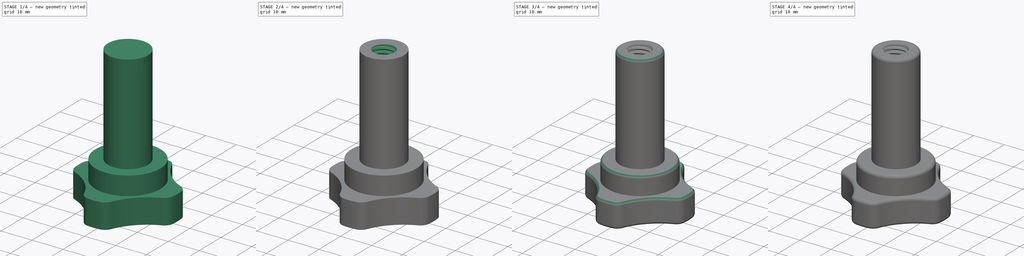
[diagram: build sequence overview — one tinted view per stage of 4, left to right]
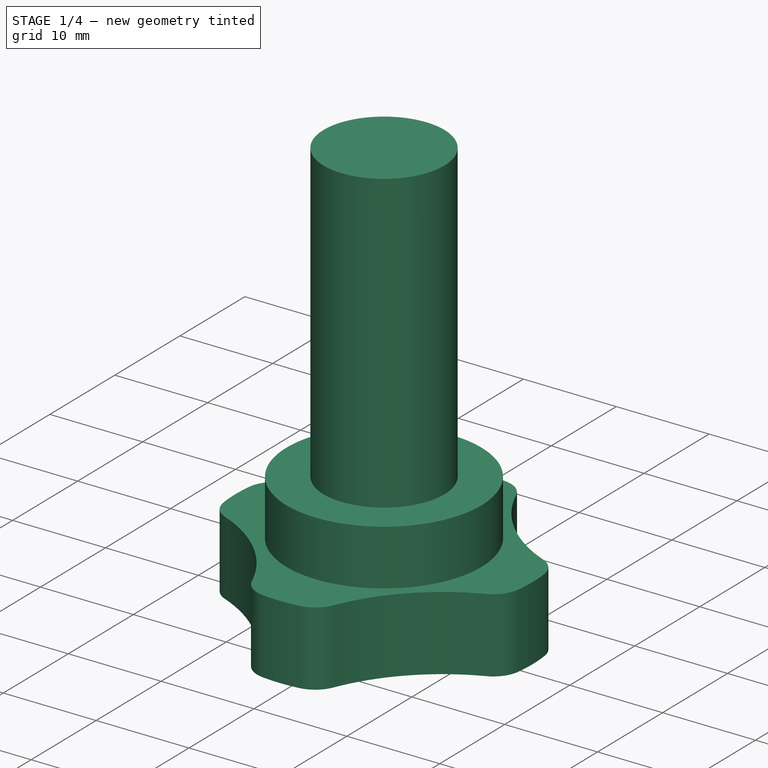
[diagram: stage 1 of 4 — iso view after this stage's code; geometry added in this stage tinted green]
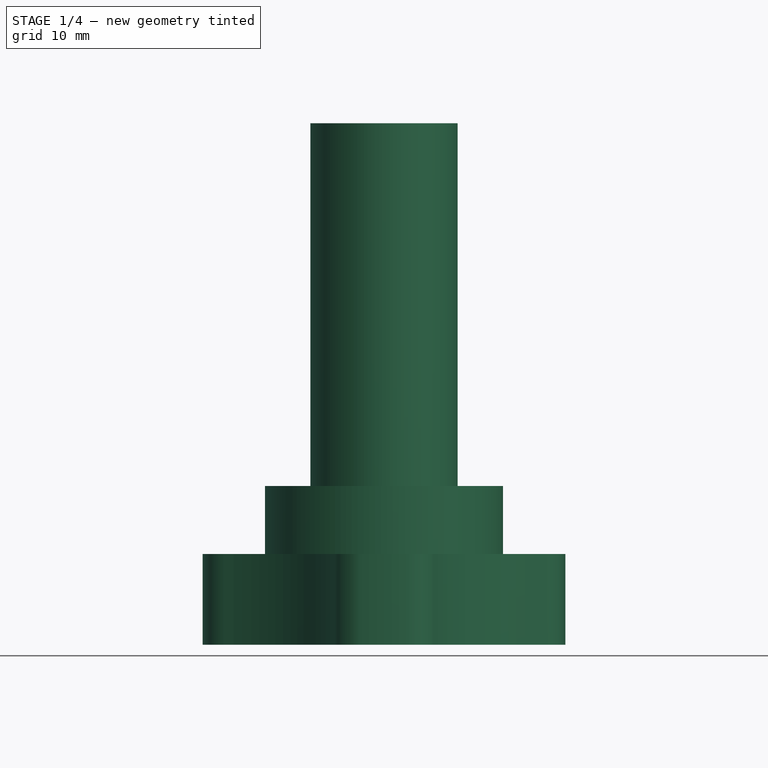
[diagram: stage 1 of 4 — front view after this stage's code; geometry added in this stage tinted green]
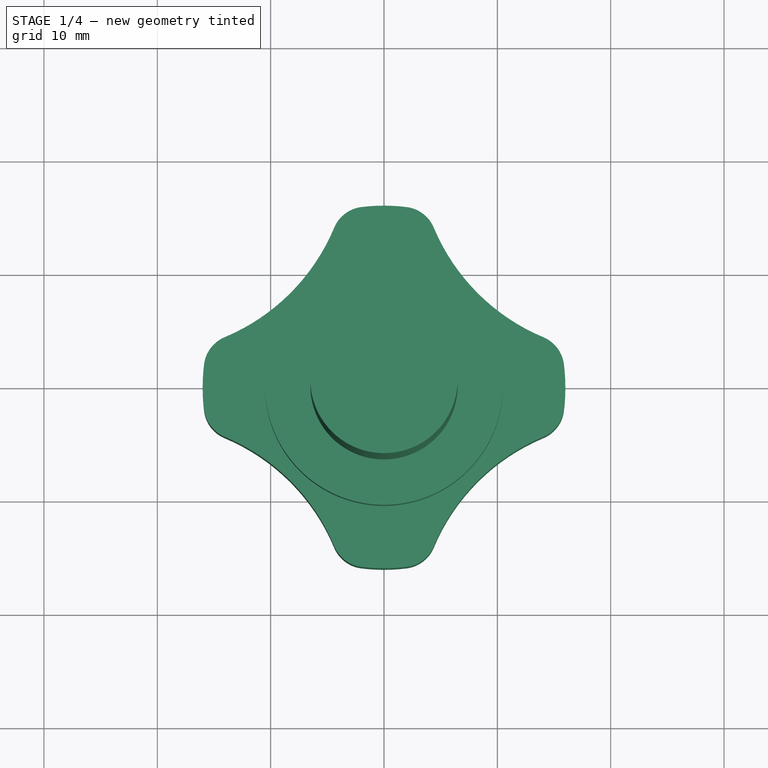
[diagram: stage 1 of 4 — top view after this stage's code; geometry added in this stage tinted green]
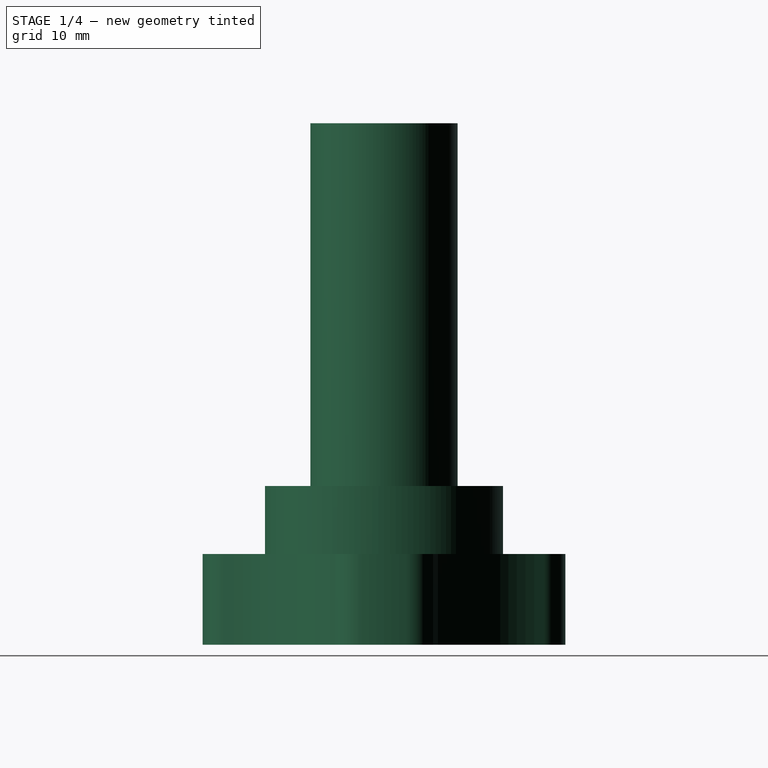
[diagram: stage 1 of 4 — right view after this stage's code; geometry added in this stage tinted green]
FCSTD DOCUMENT  (FreeCAD 0.21R33771 (Git))
Label: ToiletSeatFix
License: All rights reserved
LicenseURL: http://en.wikipedia.org/wiki/All_rights_reserved
objects: Sketcher::SketchObject×13, PartDesign::Pad×4, PartDesign::SubtractiveLoft×2, PartDesign::Fillet×2, PartDesign::SubtractiveHelix×2, PartDesign::Body×2, PartDesign::Chamfer×1
note: 37 computed .brp shape members not serialized (recipe doc carries the construction recipe); baked Part::Feature solids carry a one-line shape summary decoded from their .brp

FEATURE [Sketcher::SketchObject] Sketch004
  FullyConstrained = true
  MapMode = 5
  Placement = pos=(0,0,0) rot=(1,0,0;1.5708rad)
  Support = -> [XZ_Plane]
  expr: Constraints[13] = <<Sketch001>>.Constraints.R
  expr: Constraints[9] = 75
  sketch-geometry (8):
    g0: LineSegment StartX=0.651613 StartY=-0.27 StartZ=0 EndX=2.92 EndY=-0.27 EndZ=0
    g1: LineSegment StartX=2.92 StartY=-0.27 StartZ=0 EndX=3.57161 EndY=-0.77 EndZ=0
    g2: LineSegment StartX=3.57161 StartY=-0.77 StartZ=0 EndX=2.92 EndY=-1.27 EndZ=0
    g3: LineSegment StartX=2.92 StartY=-1.27 StartZ=0 EndX=0.651613 EndY=-1.27 EndZ=0
    g4: LineSegment StartX=0.651613 StartY=-1.27 StartZ=0 EndX=0.651613 EndY=-0.27 EndZ=0
    g5: LineSegment StartX=2.92 StartY=-0.27 StartZ=0 EndX=2.92 EndY=-1.27 EndZ=0
    g6: LineSegment StartX=3.57161 StartY=-0.77 StartZ=0 EndX=2.92 EndY=-0.77 EndZ=0
    g7: LineSegment StartX=0.651613 StartY=-0.27 StartZ=0 EndX=0 EndY=-0.27 EndZ=0
  constraints (24):
    c: Horizontal(g0)
    c: Coincident(g0,g1)
    c: Coincident(g1,g2)
    c: Coincident(g2,g3)
    c: Horizontal(g3)
    c: Coincident(g3,g4)
    c: Vertical(g4)
    c: Coincident(g0,g4)
    c: Equal(g2,g1)
    c: Angle(g1,g2) = 1.309
    c: DistanceY(g4,g4) = 1
    c: DistanceY(g3,g-1) = 1.27  'Pitch'
    c: Equal(g3,g0)
    c: DistanceX(g-1,g0) = 2.92
    c: DistanceX(g-1,g0) = 0.651613  'Radius'
    c: Coincident(g5,g0)
    c: Coincident(g5,g2)
    c: Coincident(g6,g1)
    c: PointOnObject(g6,g5)
    c: Horizontal(g6)
    c: Coincident(g7,g0)
    c: PointOnObject(g7,g-2)
    c: Horizontal(g7)
    c: Equal(g7,g6)
FEATURE [Sketcher::SketchObject] Sketch005  label="Template"
  FullyConstrained = true
  MapMode = 5
  Support = -> [XY_Plane001]
  expr: Constraints[57] = .Constraints.HoleRadius + 0.5 mm
  sketch-geometry (23):
    g0: Circle CenterX=0 CenterY=0 CenterZ=0 NormalX=0 NormalY=0 NormalZ=1 AngleXU=0 Radius=2.9
    g1: Circle CenterX=0 CenterY=0 CenterZ=0 NormalX=0 NormalY=0 NormalZ=1 AngleXU=0 Radius=16
    g2: ArcOfCircle CenterX=-20.9994 CenterY=20.9994 CenterZ=0 NormalX=0 NormalY=0 NormalZ=1 AngleXU=0 Radius=18 StartAngle=5.10844 EndAngle=5.88713
    g3: ArcOfCircle CenterX=20.9994 CenterY=-20.9994 CenterZ=0 NormalX=0 NormalY=0 NormalZ=1 AngleXU=0 Radius=18 StartAngle=1.96685 EndAngle=2.74554
    g4: ArcOfCircle CenterX=20.9994 CenterY=20.9994 CenterZ=0 NormalX=0 NormalY=0 NormalZ=1 AngleXU=0 Radius=18 StartAngle=3.53765 EndAngle=4.31634
    g5: ArcOfCircle CenterX=-20.9994 CenterY=-20.9994 CenterZ=0 NormalX=0 NormalY=0 NormalZ=1 AngleXU=0 Radius=18 StartAngle=0.396053 EndAngle=1.17474
    g6: LineSegment StartX=-20.9994 StartY=-20.9994 StartZ=0 EndX=20.9994 EndY=20.9994 EndZ=0
    g7: LineSegment StartX=-20.9994 StartY=20.9994 StartZ=0 EndX=20.9994 EndY=-20.9994 EndZ=0
    g8: LineSegment StartX=-20.9994 StartY=20.9994 StartZ=0 EndX=20.9994 EndY=20.9994 EndZ=0
    g9: LineSegment StartX=20.9994 StartY=20.9994 StartZ=0 EndX=20.9994 EndY=-20.9994 EndZ=0
    g10: LineSegment StartX=20.9994 StartY=-20.9994 StartZ=0 EndX=-20.9994 EndY=-20.9994 EndZ=0
    g11: LineSegment StartX=-20.9994 StartY=-20.9994 StartZ=0 EndX=-20.9994 EndY=20.9994 EndZ=0
    g12: ArcOfCircle CenterX=-12.898 CenterY=1.625 CenterZ=0 NormalX=0 NormalY=0 NormalZ=1 AngleXU=0 Radius=3 StartAngle=1.96685 EndAngle=3.01626
    g13: ArcOfCircle CenterX=-1.625 CenterY=12.898 CenterZ=0 NormalX=0 NormalY=0 NormalZ=1 AngleXU=0 Radius=3 StartAngle=1.69612 EndAngle=2.74554
    g14: ArcOfCircle CenterX=-12.898 CenterY=-1.625 CenterZ=0 NormalX=0 NormalY=0 NormalZ=1 AngleXU=0 Radius=3 StartAngle=3.26692 EndAngle=4.31634
    g15: ArcOfCircle CenterX=-1.625 CenterY=-12.898 CenterZ=0 NormalX=0 NormalY=0 NormalZ=1 AngleXU=0 Radius=3 StartAngle=3.53765 EndAngle=4.58706
    g16: ArcOfCircle CenterX=1.625 CenterY=-12.898 CenterZ=0 NormalX=0 NormalY=0 NormalZ=1 AngleXU=0 Radius=3 StartAngle=4.83772 EndAngle=5.88713
    g17: ArcOfCircle CenterX=12.898 CenterY=-1.625 CenterZ=0 NormalX=0 NormalY=0 NormalZ=1 AngleXU=0 Radius=3 StartAngle=5.10844 EndAngle=6.15786
    g18: ArcOfCircle CenterX=12.898 CenterY=1.625 CenterZ=0 NormalX=0 NormalY=0 NormalZ=1 AngleXU=0 Radius=3 StartAngle=0.125328 EndAngle=1.17474
    g19: ArcOfCircle CenterX=1.625 CenterY=12.898 CenterZ=0 NormalX=0 NormalY=0 NormalZ=1 AngleXU=0 Radius=3 StartAngle=0.396053 EndAngle=1.44547
    g20: Circle CenterX=0 CenterY=0 CenterZ=0 NormalX=0 NormalY=0 NormalZ=1 AngleXU=0 Radius=6.5
    g21: Circle CenterX=0 CenterY=0 CenterZ=0 NormalX=0 NormalY=0 NormalZ=1 AngleXU=0 Radius=10.5
    g22: Circle CenterX=0 CenterY=0 CenterZ=0 NormalX=0 NormalY=0 NormalZ=1 AngleXU=0 Radius=3.4
  constraints (58):
    c: Coincident(g0,g-1)
    c: Radius(g0) = 2.9  'HoleRadius'
    c: Coincident(g1,g0)
    c: Radius(g1) = 16
    c: Coincident(g6,g5)
    c: Coincident(g6,g4)
    c: Coincident(g7,g2)
    c: Coincident(g7,g3)
    c: Coincident(g8,g2)
    c: Coincident(g8,g4)
    c: Coincident(g9,g4)
    c: Coincident(g9,g3)
    c: Vertical(g9)
    c: Coincident(g10,g3)
    c: Coincident(g10,g5)
    c: Coincident(g11,g5)
    c: Coincident(g11,g2)
    c: Horizontal(g8)
    c: Horizontal(g10)
    c: Vertical(g11)
    c: Equal(g8,g9)
    c: PointOnObject(g0,g7)
    c: PointOnObject(g0,g6)
    c: Equal(g2,g4)
    c: Equal(g4,g3)
    c: Equal(g3,g5)
    c: Equal(g13,g12)
    c: Tangent(g2,g12) = 1.5708
    c: Tangent(g2,g13) = 1.5708
    c: Tangent(g13,g1) = -1.5708
    c: Tangent(g12,g1) = -1.5708
    c: Radius(g2) = 18
    c: Radius(g12) = 3
    c: Equal(g13,g19)
    c: Equal(g19,g18)
    c: Equal(g18,g17)
    c: Equal(g17,g16)
    c: Equal(g16,g15)
    c: Equal(g15,g14)
    c: Tangent(g4,g19) = 1.5708
    c: Tangent(g4,g18) = 1.5708
    c: Tangent(g3,g17) = 1.5708
    c: Tangent(g3,g16) = 1.5708
    c: Tangent(g5,g15) = 1.5708
    c: Tangent(g5,g14) = 1.5708
    c: Tangent(g14,g1) = -1.5708
    c: Tangent(g15,g1) = -1.5708
    c: Tangent(g16,g1) = -1.5708
    c: Tangent(g17,g1) = -1.5708
    c: Tangent(g18,g1) = -1.5708
    c: Tangent(g19,g1) = -1.5708
    c: DistanceY(g14,g12) = 4
    c: Coincident(g20,g0)
    c: Radius(g20) = 6.5
    c: Coincident(g21,g0)
    c: Radius(g21) = 10.5
    c: Coincident(g22,g0)
    c: Radius(g22) = 3.4
FEATURE [Sketcher::SketchObject] Sketch006
  ExternalGeometry = -> [Sketch005]
  FullyConstrained = true
  MapMode = 5
  Support = -> [XY_Plane001]
  sketch-geometry (17):
    g0: ArcOfCircle CenterX=1e-15 CenterY=1.7e-15 CenterZ=0 NormalX=0 NormalY=0 NormalZ=1 AngleXU=0 Radius=16 StartAngle=1.44547 EndAngle=1.69612
    g1: ArcOfCircle CenterX=-5e-16 CenterY=-3.3e-15 CenterZ=0 NormalX=0 NormalY=0 NormalZ=1 AngleXU=0 Radius=16 StartAngle=6.15786 EndAngle=6.40851
    g2: ArcOfCircle CenterX=8.5e-15 CenterY=0 CenterZ=0 NormalX=0 NormalY=0 NormalZ=1 AngleXU=0 Radius=16 StartAngle=4.58706 EndAngle=4.83772
    g3: ArcOfCircle CenterX=-9e-16 CenterY=1.79e-14 CenterZ=0 NormalX=0 NormalY=0 NormalZ=1 AngleXU=0 Radius=16 StartAngle=3.01626 EndAngle=3.26692
    g4: ArcOfCircle CenterX=-1.625 CenterY=12.898 CenterZ=0 NormalX=0 NormalY=0 NormalZ=1 AngleXU=0 Radius=3 StartAngle=1.69612 EndAngle=2.74554
    g5: ArcOfCircle CenterX=1.625 CenterY=12.898 CenterZ=0 NormalX=0 NormalY=0 NormalZ=1 AngleXU=0 Radius=3 StartAngle=0.396053 EndAngle=1.44547
    g6: ArcOfCircle CenterX=12.898 CenterY=1.625 CenterZ=0 NormalX=0 NormalY=0 NormalZ=1 AngleXU=0 Radius=3 StartAngle=0.125328 EndAngle=1.17474
    g7: ArcOfCircle CenterX=12.898 CenterY=-1.625 CenterZ=0 NormalX=0 NormalY=0 NormalZ=1 AngleXU=0 Radius=3 StartAngle=5.10844 EndAngle=6.15786
    g8: ArcOfCircle CenterX=1.625 CenterY=-12.898 CenterZ=0 NormalX=0 NormalY=0 NormalZ=1 AngleXU=0 Radius=3 StartAngle=4.83772 EndAngle=5.88713
    g9: ArcOfCircle CenterX=-1.625 CenterY=-12.898 CenterZ=0 NormalX=0 NormalY=0 NormalZ=1 AngleXU=0 Radius=3 StartAngle=3.53765 EndAngle=4.58706
    g10: ArcOfCircle CenterX=-12.898 CenterY=-1.625 CenterZ=0 NormalX=0 NormalY=0 NormalZ=1 AngleXU=0 Radius=3 StartAngle=3.26692 EndAngle=4.31634
    g11: ArcOfCircle CenterX=-12.898 CenterY=1.625 CenterZ=0 NormalX=0 NormalY=0 NormalZ=1 AngleXU=0 Radius=3 StartAngle=1.96685 EndAngle=3.01626
    g12: ArcOfCircle CenterX=-20.9994 CenterY=20.9994 CenterZ=0 NormalX=0 NormalY=0 NormalZ=1 AngleXU=0 Radius=18 StartAngle=5.10844 EndAngle=5.88713
    g13: ArcOfCircle CenterX=20.9994 CenterY=20.9994 CenterZ=0 NormalX=0 NormalY=0 NormalZ=1 AngleXU=0 Radius=18 StartAngle=3.53765 EndAngle=4.31634
    g14: ArcOfCircle CenterX=20.9994 CenterY=-20.9994 CenterZ=0 NormalX=0 NormalY=0 NormalZ=1 AngleXU=0 Radius=18 StartAngle=1.96685 EndAngle=2.74554
    g15: ArcOfCircle CenterX=-20.9994 CenterY=-20.9994 CenterZ=0 NormalX=0 NormalY=0 NormalZ=1 AngleXU=0 Radius=18 StartAngle=0.396053 EndAngle=1.17474
    g16: Circle CenterX=1e-15 CenterY=1.7e-15 CenterZ=0 NormalX=0 NormalY=0 NormalZ=1 AngleXU=0 Radius=2.9
  constraints (50):
    c: Coincident(g0,g-3)
    c: Coincident(g0,g-14)
    c: Coincident(g1,g-12)
    c: Coincident(g1,g-11)
    c: Coincident(g2,g-9)
    c: Coincident(g2,g-8)
    c: Coincident(g3,g-6)
    c: Coincident(g3,g-5)
    c: Equal(g0,g1)
    c: Equal(g1,g2)
    c: Equal(g2,g3)
    c: Equal(g3,g-16)
    c: Coincident(g4,g-4)
    c: Coincident(g4,g0)
    c: Coincident(g5,g0)
    c: Coincident(g5,g-14)
    c: Coincident(g6,g-13)
    c: Coincident(g6,g1)
    c: Coincident(g7,g1)
    c: Coincident(g7,g-11)
    c: Coincident(g8,g-10)
    c: Coincident(g8,g2)
    c: Coincident(g9,g2)
    c: Coincident(g9,g-8)
    c: Coincident(g10,g-7)
    c: Coincident(g10,g3)
    c: Coincident(g11,g3)
    c: Coincident(g11,g-5)
    c: Equal(g11,g-5)
    c: Equal(g-3,g4)
    c: Equal(g-14,g5)
    c: Equal(g-12,g6)
    c: Equal(g-11,g7)
    c: Equal(g-9,g8)
    c: Equal(g-8,g9)
    c: Equal(g-6,g10)
    c: Coincident(g12,g4)
    c: Coincident(g12,g11)
    c: Coincident(g13,g5)
    c: Coincident(g13,g6)
    c: Coincident(g14,g8)
    c: Coincident(g14,g7)
    c: Coincident(g15,g10)
    c: Coincident(g15,g9)
    c: Equal(g-7,g15)
    c: Equal(g-4,g12)
    c: Equal(g-13,g13)
    c: Equal(g-10,g14)
    c: Coincident(g16,g0)
    c: Equal(g16,g-15)
FEATURE [PartDesign::Pad] Pad001
  Direction = (0,0,1)
  Length = 8
  Length2 = 10
  Profile = -> Sketch006
  ReferenceAxis = -> Sketch006 [N_Axis]
  Type = 0
FEATURE [Sketcher::SketchObject] Sketch007
  AttachmentOffset = pos=(0,0,8) rot=(0,0,1;0rad)
  ExternalGeometry = -> [Sketch005]
  FullyConstrained = true
  MapMode = 5
  Placement = pos=(0,0,8) rot=(0,0,1;0rad)
  Support = -> [XY_Plane001]
  expr: .AttachmentOffset.Base.z = <<Sketch006>>.AttachmentOffset.Base.z + <<Pad001>>.Length
  sketch-geometry (2):
    g0: Circle CenterX=0 CenterY=0 CenterZ=0 NormalX=0 NormalY=0 NormalZ=1 AngleXU=0 Radius=10.5
    g1: Circle CenterX=0 CenterY=0 CenterZ=0 NormalX=0 NormalY=0 NormalZ=1 AngleXU=0 Radius=2.9
  constraints (4):
    c: Coincident(g0,g-4)
    c: Coincident(g1,g0)
    c: Equal(g-4,g0)
    c: Equal(g-3,g1)
FEATURE [PartDesign::Pad] Pad002
  BaseFeature = -> Pad001
  Direction = (0,0,1)
  Length = 6
  Length2 = 10
  Profile = -> Sketch007
  ReferenceAxis = -> Sketch007 [N_Axis]
  Type = 0
FEATURE [PartDesign::Body] Body  label="Test"
  Group = -> [Sketch,Pad,Sketch001,Sketch002,Sketch003,SubtractiveLoft,Fillet,Sketch004,SubtractiveHelix]
  Origin = -> Origin
  Tip = -> SubtractiveHelix
FEATURE [Sketcher::SketchObject] Sketch008
  AttachmentOffset = pos=(0,0,14) rot=(0,0,1;0rad)
  ExternalGeometry = -> [Sketch005]
  FullyConstrained = true
  MapMode = 5
  Placement = pos=(0,0,14) rot=(0,0,1;0rad)
  Support = -> [XY_Plane001]
  expr: .AttachmentOffset.Base.z = <<Sketch007>>.AttachmentOffset.Base.z + <<Pad002>>.Length
  sketch-geometry (1):
    g0: Circle CenterX=0 CenterY=0 CenterZ=0 NormalX=0 NormalY=0 NormalZ=1 AngleXU=0 Radius=6.5
  constraints (2):
    c: Coincident(g0,g-3)
    c: Equal(g0,g-3)
FEATURE [PartDesign::Pad] Pad003
  BaseFeature = -> Pad002
  Direction = (0,0,1)
  Length = 32
  Length2 = 10
  Profile = -> Sketch008
  ReferenceAxis = -> Sketch008 [N_Axis]
  Type = 0
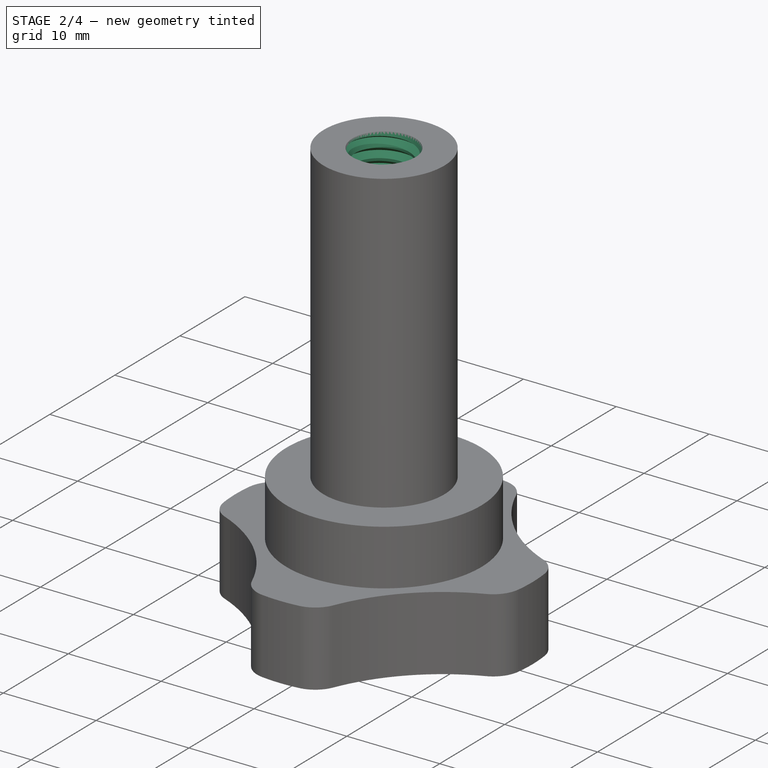
[diagram: stage 2 of 4 — iso view after this stage's code; geometry added in this stage tinted green]
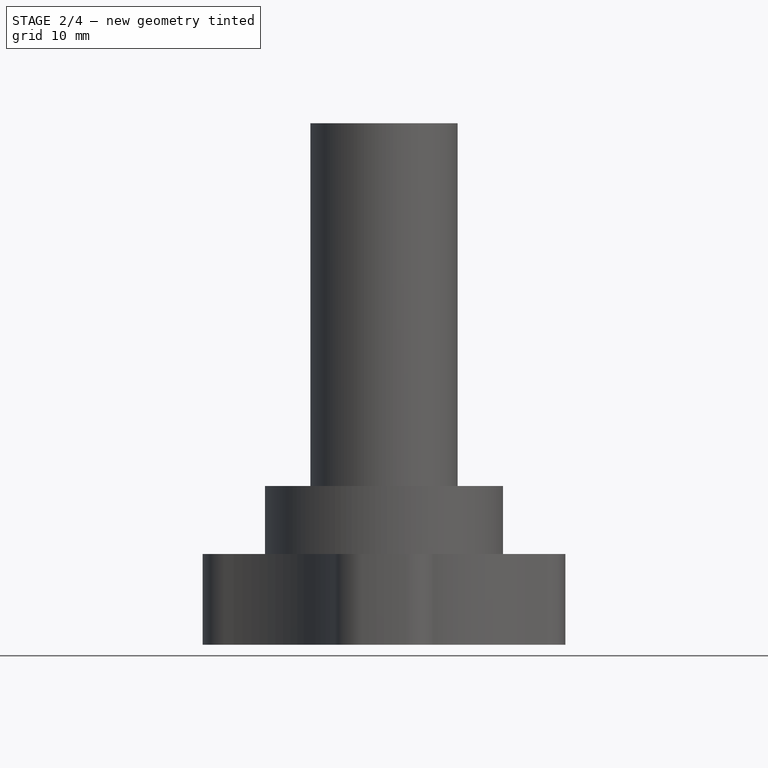
[diagram: stage 2 of 4 — front view after this stage's code; geometry added in this stage tinted green]
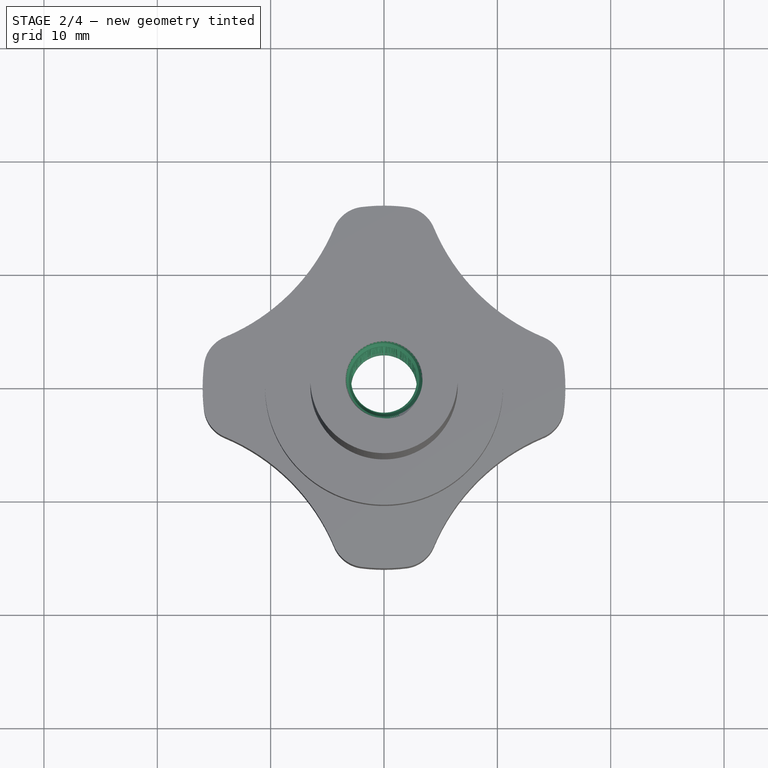
[diagram: stage 2 of 4 — top view after this stage's code; geometry added in this stage tinted green]
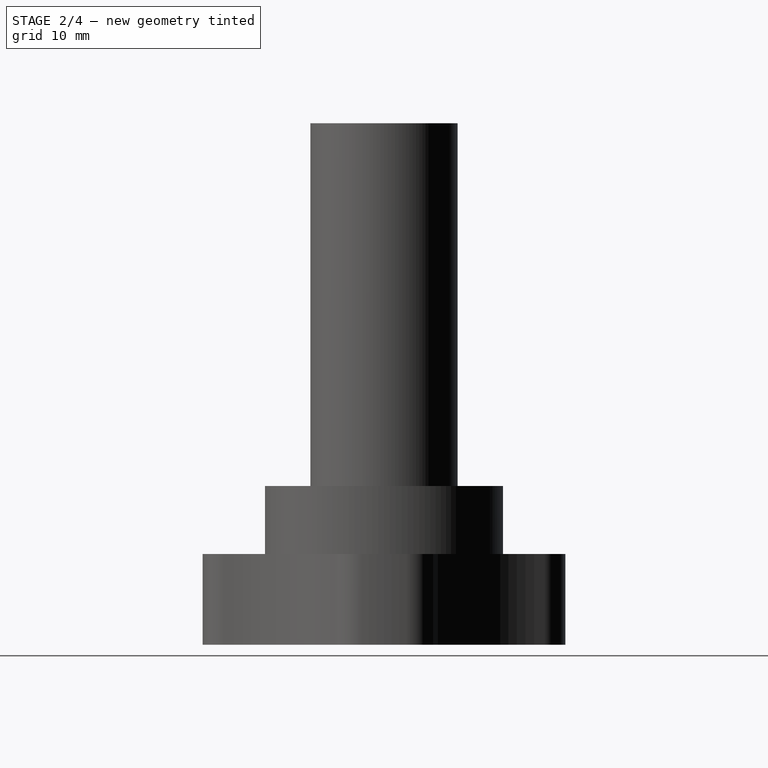
[diagram: stage 2 of 4 — right view after this stage's code; geometry added in this stage tinted green]
FEATURE [Sketcher::SketchObject] Sketch009
  AttachmentOffset = pos=(0,0,14) rot=(0,0,1;0rad)
  ExternalGeometry = -> [Sketch005]
  FullyConstrained = true
  MapMode = 5
  Placement = pos=(0,0,14) rot=(0,0,1;0rad)
  Support = -> [XY_Plane001]
  expr: .AttachmentOffset.Base.z = <<Sketch008>>.AttachmentOffset.Base.z
  sketch-geometry (1):
    g0: Circle CenterX=0 CenterY=0 CenterZ=0 NormalX=0 NormalY=0 NormalZ=1 AngleXU=0 Radius=2.9
  constraints (2):
    c: Coincident(g0,g-3)
    c: Equal(g0,g-3)
FEATURE [Sketcher::SketchObject] Sketch010
  AttachmentOffset = pos=(0,0,44.73) rot=(0,0,1;0rad)
  ExternalGeometry = -> [Sketch005]
  FullyConstrained = true
  MapMode = 5
  Placement = pos=(0,0,44.73) rot=(0,0,1;0rad)
  Support = -> [XY_Plane001]
  expr: .AttachmentOffset.Base.z = <<Sketch008>>.AttachmentOffset.Base.z + <<Pad003>>.Length - 1.27 mm
  sketch-geometry (1):
    g0: Circle CenterX=0 CenterY=0 CenterZ=0 NormalX=0 NormalY=0 NormalZ=1 AngleXU=0 Radius=2.9
  constraints (2):
    c: Coincident(g0,g-3)
    c: Equal(g0,g-3)
FEATURE [Sketcher::SketchObject] Sketch011
  AttachmentOffset = pos=(0,0,46) rot=(0,0,1;0rad)
  ExternalGeometry = -> [Sketch005]
  FullyConstrained = true
  MapMode = 5
  Placement = pos=(0,0,46) rot=(0,0,1;0rad)
  Support = -> [XY_Plane001]
  expr: .AttachmentOffset.Base.z = <<Sketch008>>.AttachmentOffset.Base.z + <<Pad003>>.Length
  sketch-geometry (1):
    g0: Circle CenterX=0 CenterY=0 CenterZ=0 NormalX=0 NormalY=0 NormalZ=1 AngleXU=0 Radius=3.4
  constraints (2):
    c: Equal(g0,g-3)
    c: Coincident(g-3,g0)
FEATURE [PartDesign::SubtractiveLoft] SubtractiveLoft001
  BaseFeature = -> Pad003
  Closed = false
  Profile = -> Sketch009
  Refine = true
  Ruled = true
  Sections = -> [Sketch010,Sketch011]
FEATURE [Sketcher::SketchObject] Sketch012
  ExternalGeometry = -> [Sketch005]
  FullyConstrained = true
  MapMode = 5
  Placement = pos=(0,0,0) rot=(1,0,0;1.5708rad)
  Support = -> [XZ_Plane001]
  sketch-geometry (9):
    g0: LineSegment StartX=0.651613 StartY=-0.27 StartZ=0 EndX=2.9 EndY=-0.27 EndZ=0
    g1: LineSegment StartX=2.9 StartY=-0.27 StartZ=0 EndX=3.55161 EndY=-0.77 EndZ=0
    g2: LineSegment StartX=3.55161 StartY=-0.77 StartZ=0 EndX=2.9 EndY=-1.27 EndZ=0
    g3: LineSegment StartX=2.9 StartY=-1.27 StartZ=0 EndX=0.651613 EndY=-1.27 EndZ=0
    g4: LineSegment StartX=0.651613 StartY=-1.27 StartZ=0 EndX=0.651613 EndY=-0.27 EndZ=0
    g5: LineSegment StartX=2.9 StartY=0 StartZ=0 EndX=2.9 EndY=-0.27 EndZ=0
    g6: LineSegment StartX=2.9 StartY=-0.27 StartZ=0 EndX=2.9 EndY=-1.27 EndZ=0
    g7: LineSegment StartX=0.651613 StartY=-0.27 StartZ=0 EndX=0 EndY=-0.27 EndZ=0
    g8: LineSegment StartX=3.55161 StartY=-0.77 StartZ=0 EndX=2.9 EndY=-0.77 EndZ=0
  constraints (26):
    c: Horizontal(g0)
    c: Coincident(g0,g1)
    c: Coincident(g1,g2)
    c: Coincident(g2,g3)
    c: Horizontal(g3)
    c: Coincident(g3,g4)
    c: Coincident(g4,g0)
    c: Vertical(g4)
    c: Coincident(g5,g-3)
    c: Coincident(g5,g0)
    c: Vertical(g5)
    c: Equal(g1,g2)
    c: Angle(g1,g2) = 1.309
    c: DistanceY(g3,g-1) = 1.27  'Pitch'
    c: DistanceY(g4,g4) = 1
    c: Coincident(g6,g0)
    c: Coincident(g6,g2)
    c: Vertical(g6)
    c: Coincident(g7,g0)
    c: Horizontal(g7)
    c: PointOnObject(g7,g-2)
    c: Coincident(g8,g1)
    c: PointOnObject(g8,g6)
    c: Horizontal(g8)
    c: Equal(g8,g7)
    c: DistanceX(g7,g7) = 0.651613  'Radius'
FEATURE [PartDesign::Chamfer] Chamfer
  Angle = 66
  Base = -> SubtractiveLoft001 [Edge24]
  BaseFeature = -> SubtractiveLoft001
  ChamferType = 2
  FlipDirection = false
  Size = 0.5
  Size2 = 1
  SupportTransform = false
  UseAllEdges = false
FEATURE [PartDesign::SubtractiveHelix] SubtractiveHelix001
  Angle = 0
  Axis = (0,-2e-16,1)
  Base = (0,0,0)
  BaseFeature = -> Chamfer
  Growth = 0
  HasBeenEdited = true
  Height = 48
  LeftHanded = false
  Mode = 0
  Outside = false
  Pitch = 1.27
  Profile = -> Sketch012
  ReferenceAxis = -> Sketch012 [V_Axis]
  Turns = 37.7953
  expr: Height = <<Pad001>>.Length + <<Pad002>>.Length + <<Pad003>>.Length + 2 mm
  expr: Pitch = <<Sketch012>>.Constraints.Pitch
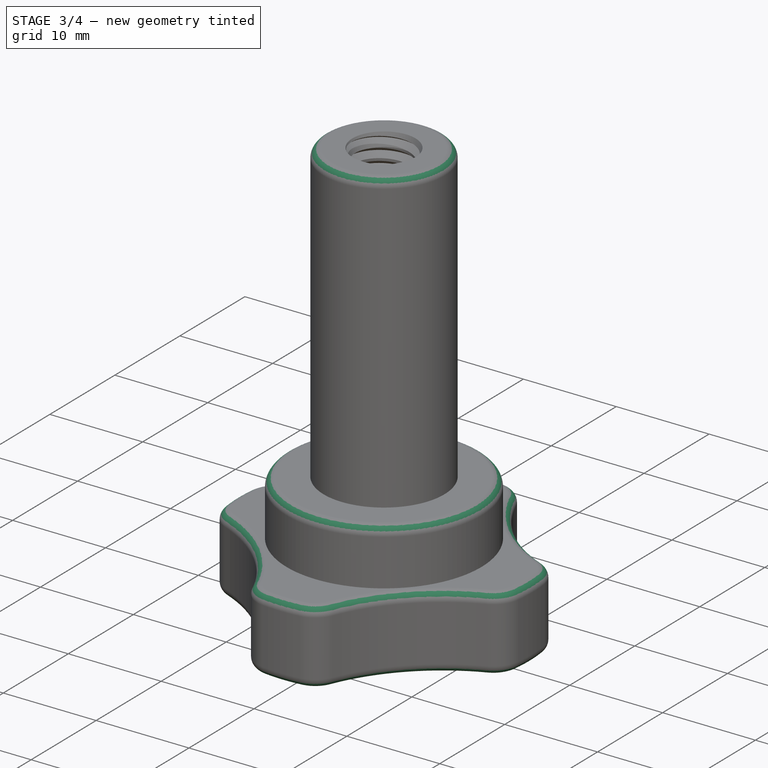
[diagram: stage 3 of 4 — iso view after this stage's code; geometry added in this stage tinted green]
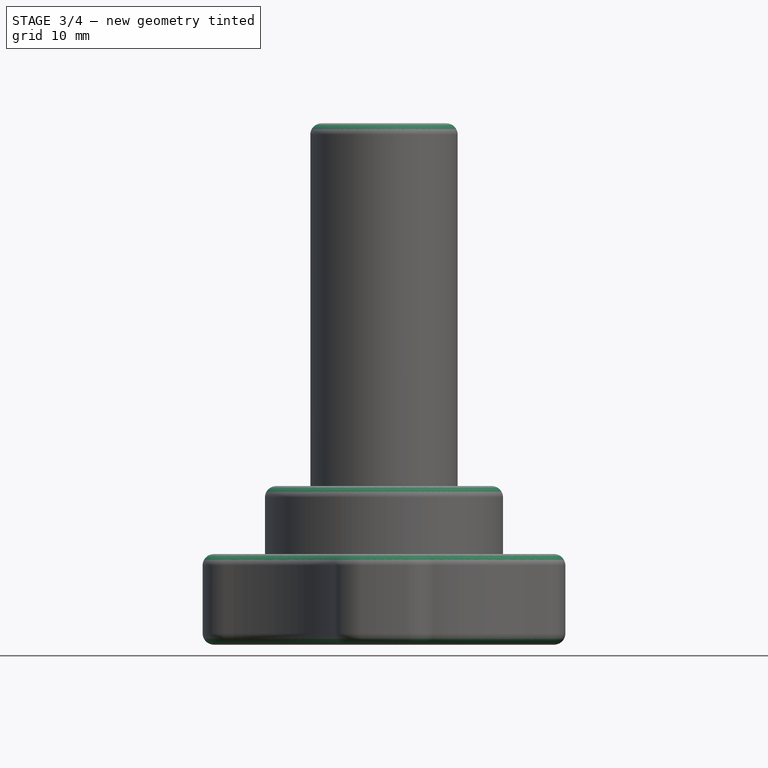
[diagram: stage 3 of 4 — front view after this stage's code; geometry added in this stage tinted green]
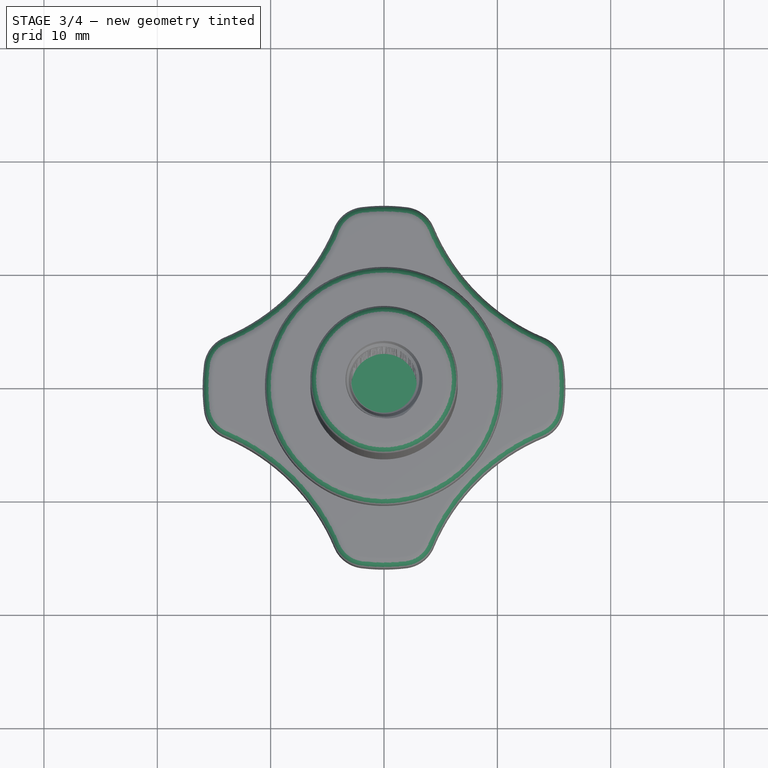
[diagram: stage 3 of 4 — top view after this stage's code; geometry added in this stage tinted green]
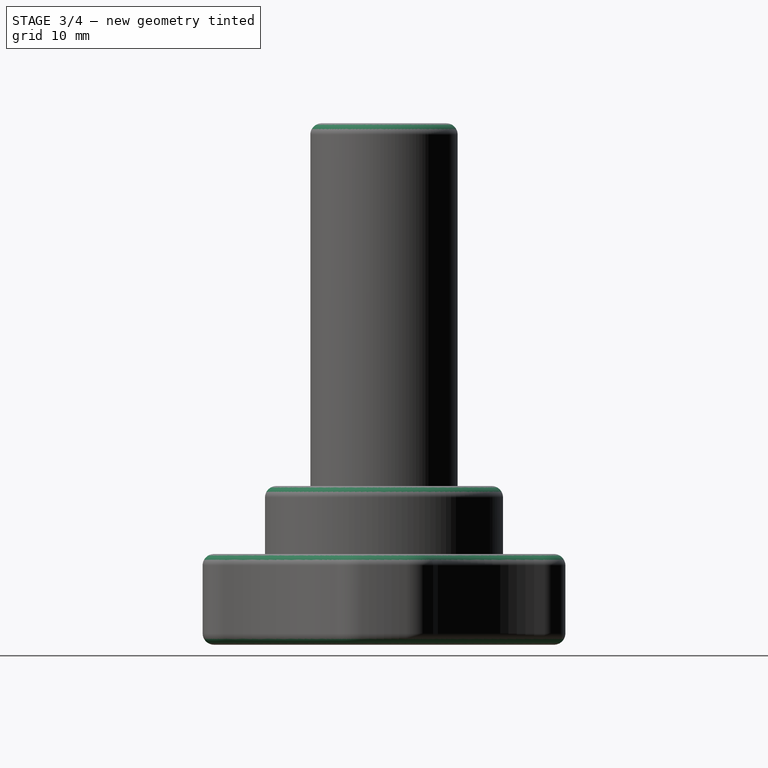
[diagram: stage 3 of 4 — right view after this stage's code; geometry added in this stage tinted green]
FEATURE [Sketcher::SketchObject] Sketch
  FullyConstrained = true
  MapMode = 5
  Support = -> [XY_Plane]
  sketch-geometry (7):
    g0: LineSegment StartX=3.75 StartY=6.49519 StartZ=0 EndX=-3.75 EndY=6.49519 EndZ=0
    g1: LineSegment StartX=-3.75 StartY=6.49519 StartZ=0 EndX=-7.5 EndY=6.84e-14 EndZ=0
    g2: LineSegment StartX=-7.5 StartY=6.84e-14 StartZ=0 EndX=-3.75 EndY=-6.49519 EndZ=0
    g3: LineSegment StartX=-3.75 StartY=-6.49519 StartZ=0 EndX=3.75 EndY=-6.49519 EndZ=0
    g4: LineSegment StartX=3.75 StartY=-6.49519 StartZ=0 EndX=7.5 EndY=-1.33e-14 EndZ=0
    g5: LineSegment StartX=7.5 StartY=-1.33e-14 StartZ=0 EndX=3.75 EndY=6.49519 EndZ=0
    g6: Circle CenterX=0 CenterY=0 CenterZ=0 NormalX=0 NormalY=0 NormalZ=1 AngleXU=0 Radius=7.5
  constraints (16):
    c: Coincident(g0,g1)
    c: Coincident(g1,g2)
    c: Coincident(g2,g3)
    c: Coincident(g3,g4)
    c: Coincident(g4,g5)
    c: Coincident(g5,g0)
    c: Equal(g0, g1-g5) x5
    c: PointOnObject(g0,g6)
    c: PointOnObject(g1,g6)
    c: PointOnObject(g2,g6)
    c: PointOnObject(g3,g6)
    c: PointOnObject(g4,g6)
    c: PointOnObject(g5,g6)
    c: Coincident(g6,g-1)
    c: DistanceX(g1,g4) = 15
    c: Horizontal(g0)
FEATURE [PartDesign::Pad] Pad
  Direction = (0,0,1)
  Length = 8
  Length2 = 10
  Profile = -> Sketch
  ReferenceAxis = -> Sketch [N_Axis]
  Type = 0
FEATURE [PartDesign::Fillet] Fillet001
  Base = -> SubtractiveHelix001 [Edge25,Edge72,Edge2,Edge87]
  BaseFeature = -> SubtractiveHelix001
  Radius = 1
  SupportTransform = false
  UseAllEdges = false
FEATURE [PartDesign::Body] Body001  label="Body"
  Group = -> [Sketch005,Sketch006,Pad001,Sketch007,Pad002,Sketch008,Pad003,Sketch009,Sketch010,Sketch011,SubtractiveLoft001,Chamfer,Sketch012,SubtractiveHelix001,Fillet001]
  Origin = -> Origin001
  Tip = -> Fillet001
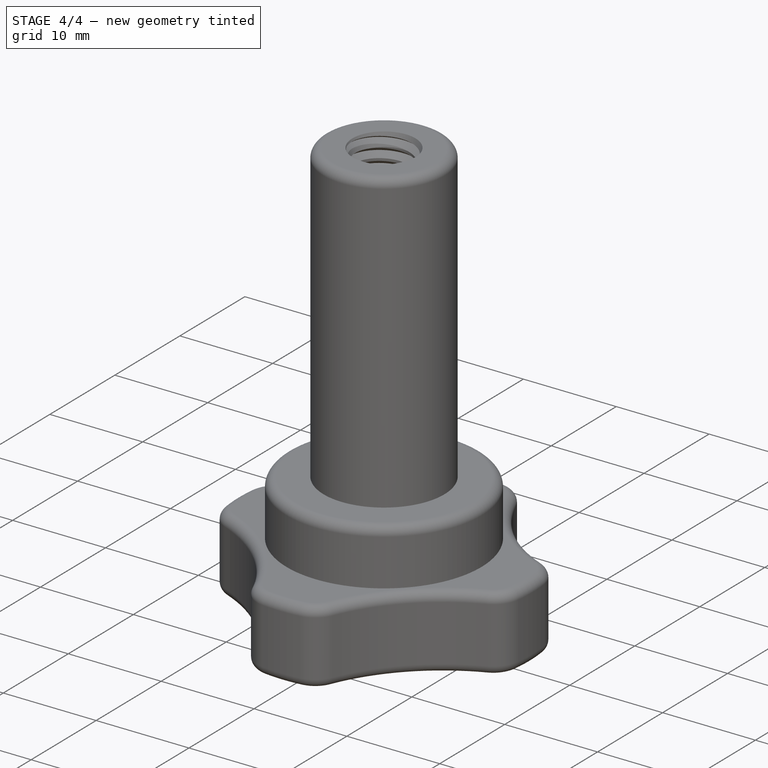
[diagram: stage 4 of 4 — iso view after this stage's code; geometry added in this stage tinted green]
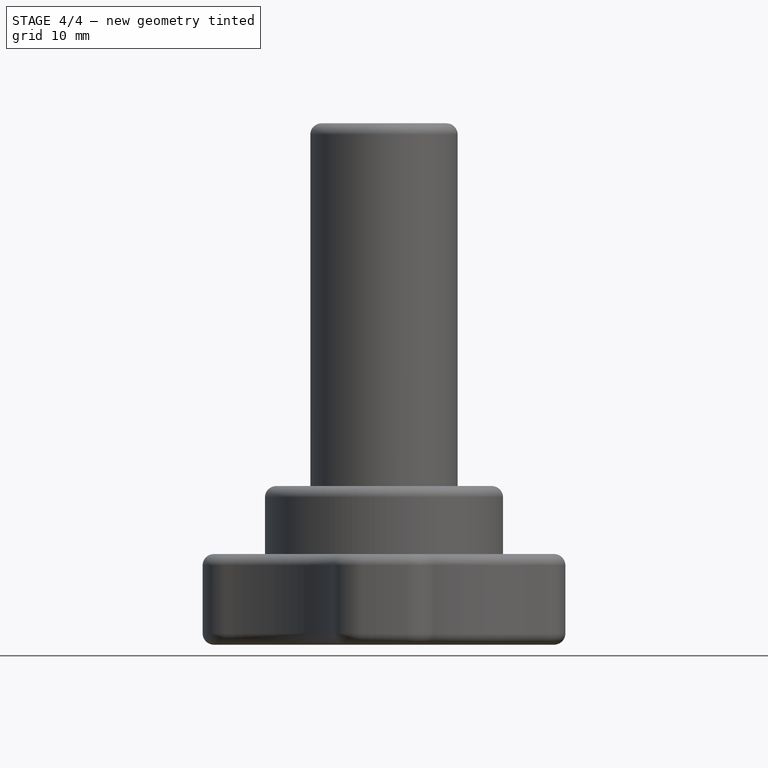
[diagram: stage 4 of 4 — front view after this stage's code; geometry added in this stage tinted green]
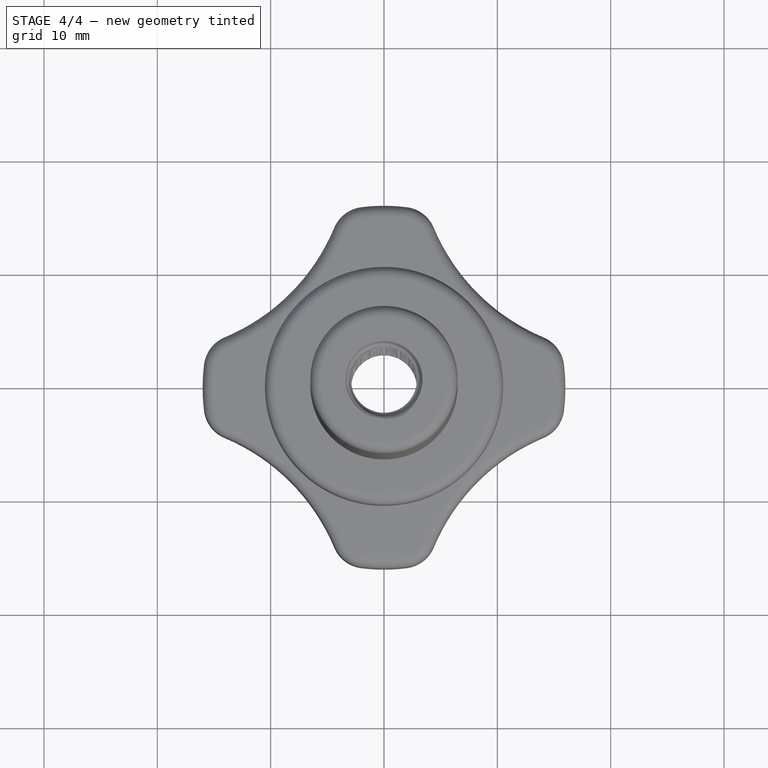
[diagram: stage 4 of 4 — top view after this stage's code; geometry added in this stage tinted green]
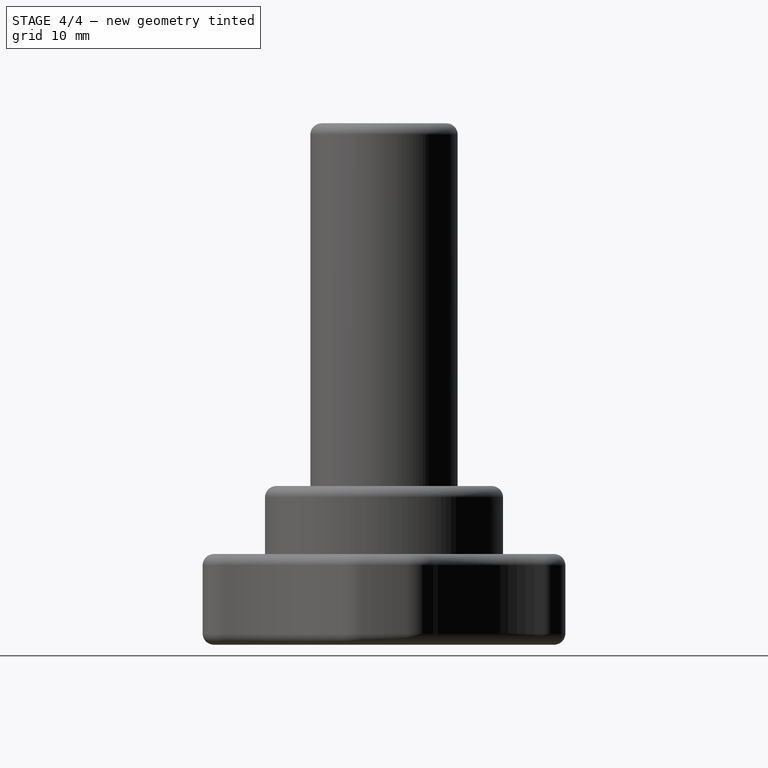
[diagram: stage 4 of 4 — right view after this stage's code; geometry added in this stage tinted green]
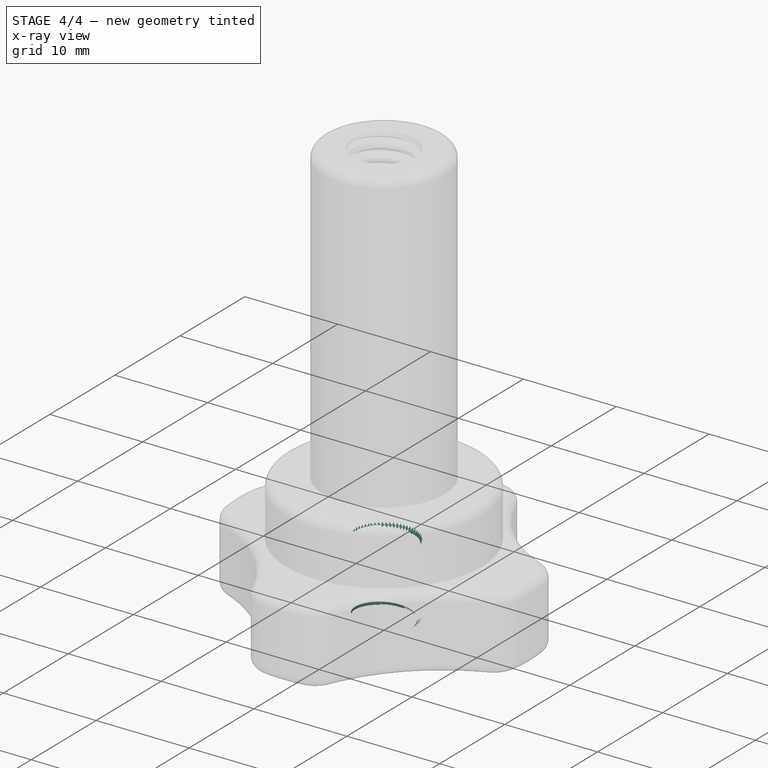
[diagram: stage 4 of 4 — x-ray composite at the iso view; earlier geometry ghosted, this stage's added geometry solid]
FEATURE [Sketcher::SketchObject] Sketch001
  FullyConstrained = true
  MapMode = 5
  Support = -> [XY_Plane]
  sketch-geometry (1):
    g0: Circle CenterX=0 CenterY=0 CenterZ=0 NormalX=0 NormalY=0 NormalZ=1 AngleXU=0 Radius=2.92
  constraints (2):
    c: Coincident(g0,g-1)
    c: Radius(g0) = 2.92  'R'
FEATURE [Sketcher::SketchObject] Sketch002
  AttachmentOffset = pos=(0,0,6.73) rot=(0,0,1;0rad)
  FullyConstrained = true
  MapMode = 5
  Placement = pos=(0,0,6.73) rot=(0,0,1;0rad)
  Support = -> [XY_Plane]
  expr: .AttachmentOffset.Base.z = Pad.Length - <<Sketch004>>.Constraints.Pitch
  expr: Constraints[1] = <<Sketch001>>.Constraints.R
  sketch-geometry (1):
    g0: Circle CenterX=0 CenterY=0 CenterZ=0 NormalX=0 NormalY=0 NormalZ=1 AngleXU=0 Radius=2.92
  constraints (2):
    c: Coincident(g0,g-1)
    c: Radius(g0) = 2.92
FEATURE [Sketcher::SketchObject] Sketch003
  AttachmentOffset = pos=(0,0,8) rot=(0,0,1;0rad)
  FullyConstrained = true
  MapMode = 5
  Placement = pos=(0,0,8) rot=(0,0,1;0rad)
  Support = -> [XY_Plane]
  expr: .AttachmentOffset.Base.z = <<Pad>>.Length
  expr: Constraints[1] = <<Sketch001>>.Constraints.R + 0.5 mm
  sketch-geometry (1):
    g0: Circle CenterX=0 CenterY=0 CenterZ=0 NormalX=0 NormalY=0 NormalZ=1 AngleXU=0 Radius=3.42
  constraints (2):
    c: Coincident(g0,g-1)
    c: Radius(g0) = 3.42
FEATURE [PartDesign::SubtractiveLoft] SubtractiveLoft
  BaseFeature = -> Pad
  Closed = false
  Profile = -> Sketch001
  Ruled = true
  Sections = -> [Sketch002,Sketch003]
FEATURE [PartDesign::Fillet] Fillet
  Base = -> SubtractiveLoft [Edge5,Edge8,Edge2,Edge1,Edge19,Edge20,Edge22]
  BaseFeature = -> SubtractiveLoft
  Radius = 0.6
  SupportTransform = false
  UseAllEdges = false
FEATURE [PartDesign::SubtractiveHelix] SubtractiveHelix
  Angle = 0
  Axis = (0,-2e-16,1)
  Base = (0,0,0)
  BaseFeature = -> Fillet
  Growth = 0
  HasBeenEdited = true
  Height = 10
  LeftHanded = false
  Mode = 0
  Outside = false
  Pitch = 1.27
  Profile = -> Sketch004
  ReferenceAxis = -> Sketch004 [V_Axis]
  Turns = 7.87402
  expr: Height = <<Pad>>.Length + 2 mm
  expr: Pitch = <<Sketch004>>.Constraints.Pitch
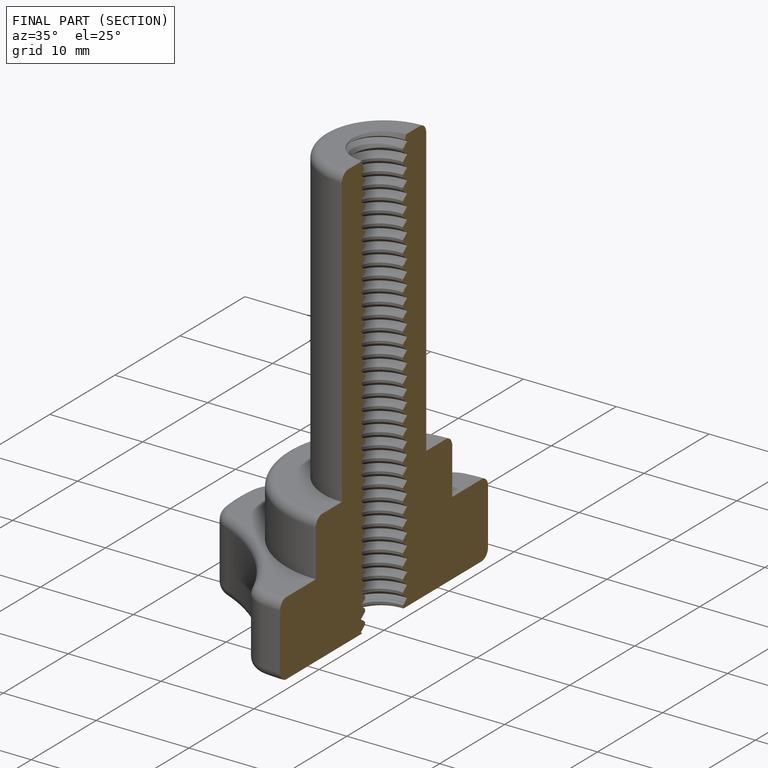
[diagram: finished part — half-section view (interior)]
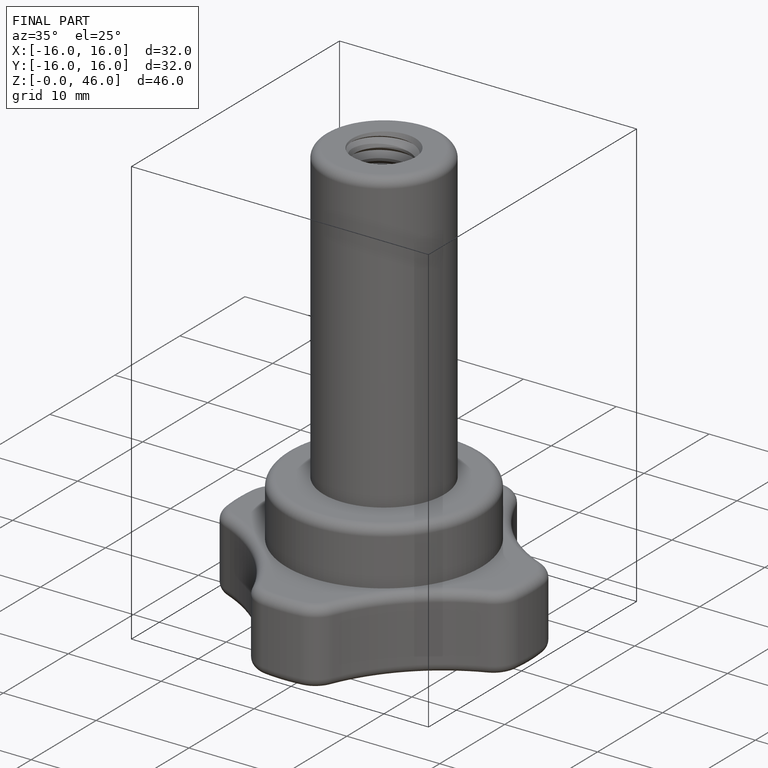
[diagram: finished part — iso view with bounding-box wireframe]
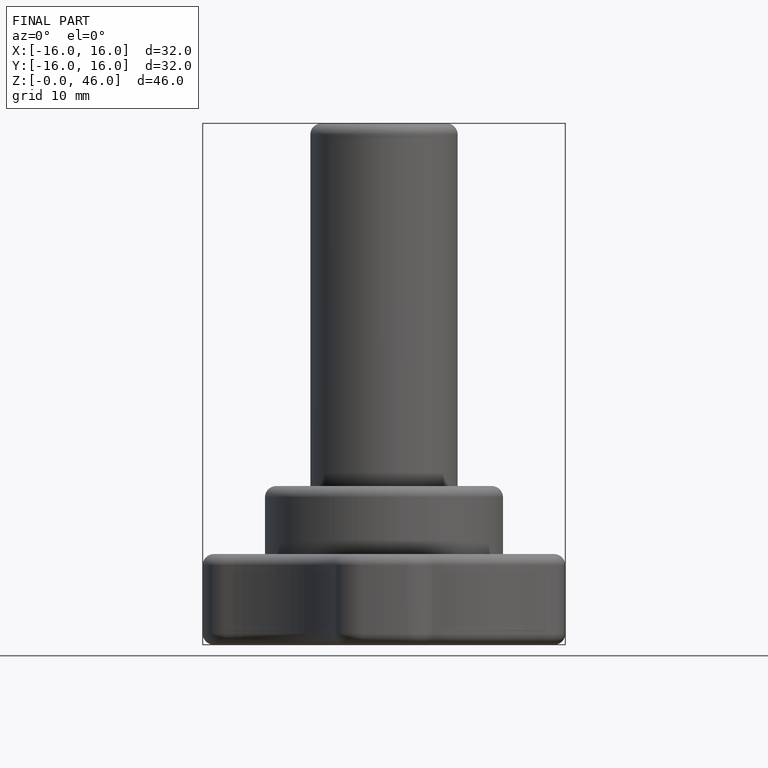
[diagram: finished part — front view with bounding-box wireframe]
